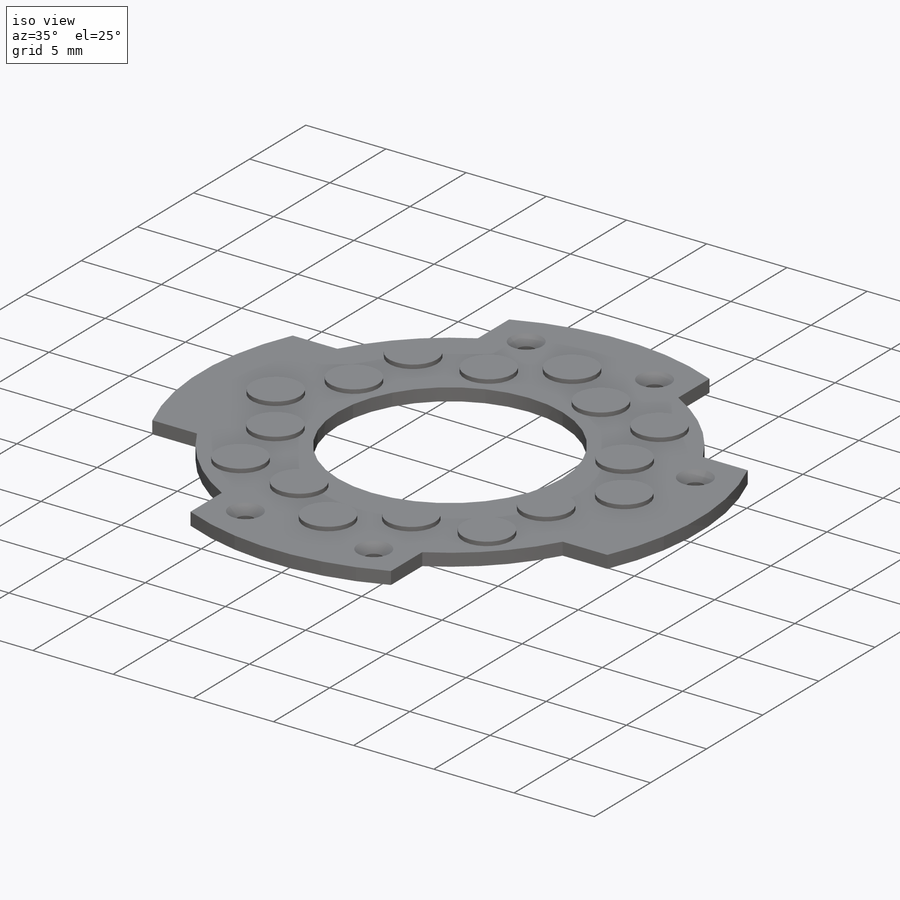
[diagram: iso view]
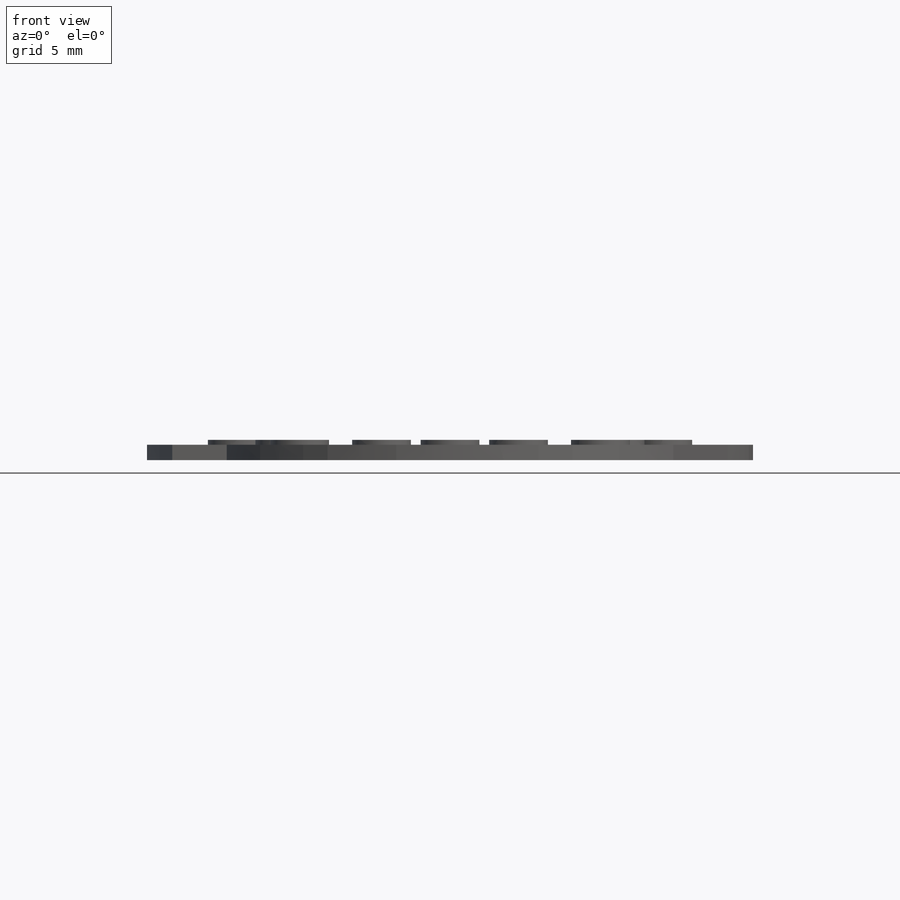
[diagram: front view]
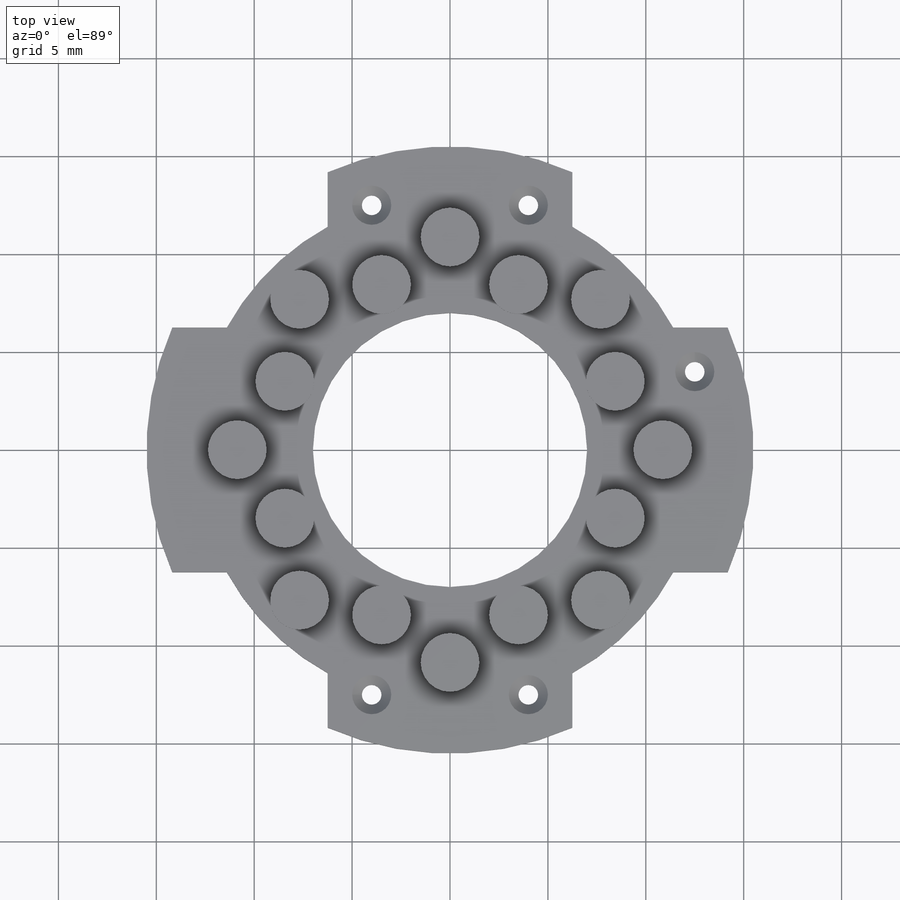
[diagram: top view]
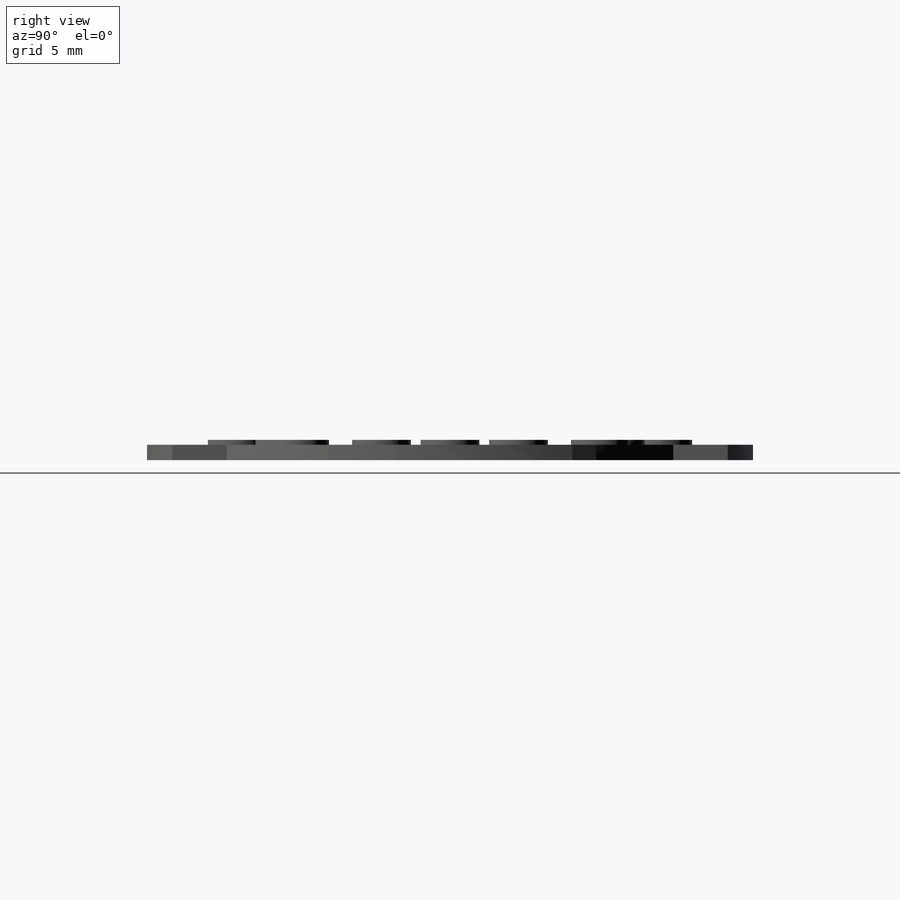
[diagram: right view]
SOLIDWORKS PART (.sldprt)
format: sldprt  version: not decoded by parser v0  size: 327,168 bytes
history: native  units: mm
features: sketch x3, extrude x2, material x1, cut_extrude x1, chamfer x1 (+16 scaffold rows collapsed)
feature tree (24):
  scaffold x16  (default folders/planes/origin — collapsed)
  material  "Custom Plastic"
  sketch  "Sketch1"  dims[c1.D1=31.0mm c1.D2=26.0mm c1.D5=14.0mm c1.D3=6.25mm c1.D4=15.5mm c2.D4=45.0deg]
  extrude  "Boss-Extrude1"  Depth=0.7874mm
  sketch  "Sketch2"  dims[c1.padRadius=1.5mm c1.D2=3.0mm c1.D7=~1.342459mm c1.D1=0.5mm c2.D2=2.5mm c2.D1=0.5mm c2.D3=0.5mm c2.D4=1.0mm c2.D5=~16.50193mm c3.D5=22.5deg c3.D2=2.5mm c3.D1=0.5mm c4.D2=1.27mm c4.D6=0.75mm c4.D7=1.905mm c4.D1=4.0mm c5.D6=1.27mm c5.D8=0.635mm c5.D1=0.635mm c5.D9=~0.87831mm c5.D7=1.778mm c6.D9=3.46mm c7.D9=5.625deg c7.D7=15.5mm c8.D7=5.625deg c9.D7=1.27mm c9.D9=0.762mm c10.D7=0.635mm]
  extrude  "Boss-Extrude2"  Depth=0.25mm
  sketch  "Sketch3"  dims[c1.D2=1.0mm c1.D1=12.5mm c1.D3=4.0mm c1.D5=90.0deg c2.D5=~13.124405mm c3.D5=90.0deg c3.D4=2.0]
  cut_extrude  "Cut-Extrude1"  [1 undecoded]
  chamfer  "Chamfer1"  Distance=0.5mm Angle=45deg
decode coverage: 6 of 7 modeling features carry decoded parameters
note: ~ marks probable driven/reference dimensions
note: 1 parameter value undecoded
note: suppression state not decoded; provenance and decode notes live in map.json
